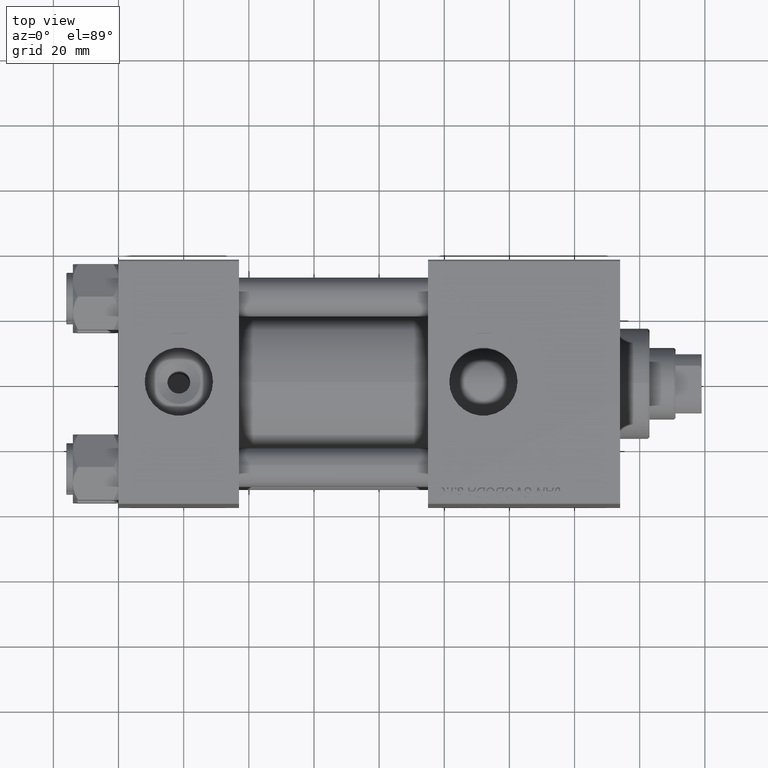
[diagram: clean part render]
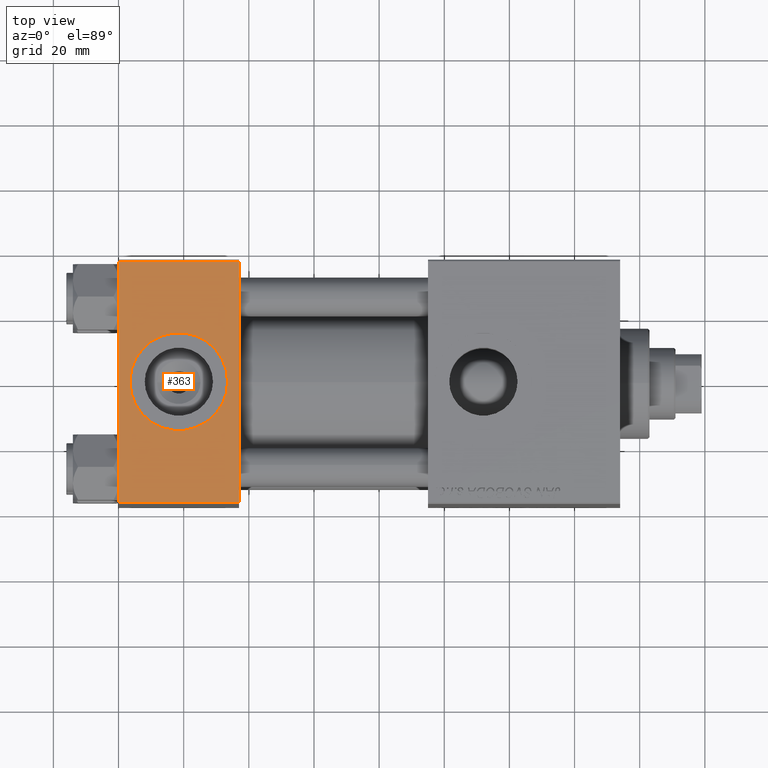
[diagram: same view with one face highlighted and labeled with its STEP entity id]
A machine part, top view. The second image highlights one B-rep face of the part: STEP entity #363.
In plain terms, the highlighted planar face has unit normal (0, 0, -1).
Its self-contained STEP definition (entity closure, byte-faithful):
#363 = ADVANCED_FACE ( 'NONE', ( #37028, #845 ), #12985, .F. ) ;
#503 = EDGE_CURVE ( 'NONE', #37017, #10672, #43558, .T. ) ;
#845 = FACE_OUTER_BOUND ( 'NONE', #10298, .T. ) ;
#4308 = EDGE_CURVE ( 'NONE', #36411, #8347, #10767, .T. ) ;
#4667 = EDGE_CURVE ( 'NONE', #44751, #10672, #4790, .T. ) ;
#4790 = LINE ( 'NONE', #37021, #15813 ) ;
#5420 = CARTESIAN_POINT ( 'NONE',  ( 33.50000000000000000, -5.204170427930421283E-15, 37.50000000000000000 ) ) ;
#6259 = AXIS2_PLACEMENT_3D ( 'NONE', #45705, #26150, #22434 ) ;
#7365 = CARTESIAN_POINT ( 'NONE',  ( 37.00000000000000000, 37.49999999999999289, 37.50000000000000000 ) ) ;
#8347 = VERTEX_POINT ( 'NONE', #15522 ) ;
#10298 = EDGE_LOOP ( 'NONE', ( #49027, #17716, #44086, #15025 ) ) ;
#10672 = VERTEX_POINT ( 'NONE', #12520 ) ;
#10767 = CIRCLE ( 'NONE', #38588, 15.00000000000000355 ) ;
#11332 = EDGE_CURVE ( 'NONE', #31963, #44751, #12386, .T. ) ;
#12191 = CARTESIAN_POINT ( 'NONE',  ( 0.000000000000000000, -37.00000000000000711, 37.49999999999999289 ) ) ;
#12386 = LINE ( 'NONE', #36157, #42944 ) ;
#12520 = CARTESIAN_POINT ( 'NONE',  ( 37.00000000000000000, -37.00000000000000711, 37.49999999999999289 ) ) ;
#12985 = PLANE ( 'NONE',  #36787 ) ;
#14219 = EDGE_CURVE ( 'NONE', #37017, #31963, #27004, .T. ) ;
#15025 = ORIENTED_EDGE ( 'NONE', *, *, #14219, .T. ) ;
#15522 = CARTESIAN_POINT ( 'NONE',  ( 3.499999999999997780, -3.367200229209391300E-15, 37.50000000000000000 ) ) ;
#15813 = VECTOR ( 'NONE', #24064, 1000.000000000000000 ) ;
#16960 = CARTESIAN_POINT ( 'NONE',  ( 37.00000000000000000, 37.49999999999999289, 37.50000000000000000 ) ) ;
#17716 = ORIENTED_EDGE ( 'NONE', *, *, #4667, .T. ) ;
#18548 = DIRECTION ( 'NONE',  ( 1.000000000000000000, 0.000000000000000000, 0.000000000000000000 ) ) ;
#18998 = EDGE_LOOP ( 'NONE', ( #51366, #28483 ) ) ;
#21570 = CARTESIAN_POINT ( 'NONE',  ( 0.000000000000000000, 36.99999999999999289, 37.50000000000000000 ) ) ;
#21749 = CARTESIAN_POINT ( 'NONE',  ( 18.50000000000000000, -5.204170427930421283E-15, 37.50000000000000000 ) ) ;
#22434 = DIRECTION ( 'NONE',  ( 1.000000000000000000, 0.000000000000000000, 0.000000000000000000 ) ) ;
#22961 = EDGE_CURVE ( 'NONE', #8347, #36411, #36651, .T. ) ;
#24064 = DIRECTION ( 'NONE',  ( 1.000000000000000000, 0.000000000000000000, 0.000000000000000000 ) ) ;
#26150 = DIRECTION ( 'NONE',  ( 0.000000000000000000, 0.000000000000000000, 1.000000000000000000 ) ) ;
#27004 = LINE ( 'NONE', #48118, #38861 ) ;
#28483 = ORIENTED_EDGE ( 'NONE', *, *, #22961, .F. ) ;
#31963 = VERTEX_POINT ( 'NONE', #21570 ) ;
#33055 = DIRECTION ( 'NONE',  ( 0.000000000000000000, 9.251858538542971581E-17, -1.000000000000000000 ) ) ;
#33574 = DIRECTION ( 'NONE',  ( 0.000000000000000000, 1.000000000000000000, 9.251858538542971581E-17 ) ) ;
#34264 = VECTOR ( 'NONE', #35884, 1000.000000000000000 ) ;
#35884 = DIRECTION ( 'NONE',  ( 0.000000000000000000, -1.000000000000000000, -9.251858538542971581E-17 ) ) ;
#36129 = CARTESIAN_POINT ( 'NONE',  ( 37.00000000000000000, 36.99999999999999289, 37.50000000000000000 ) ) ;
#36157 = CARTESIAN_POINT ( 'NONE',  ( 0.000000000000000000, 37.49999999999999289, 37.50000000000000000 ) ) ;
#36411 = VERTEX_POINT ( 'NONE', #5420 ) ;
#36651 = CIRCLE ( 'NONE', #6259, 15.00000000000000355 ) ;
#36787 = AXIS2_PLACEMENT_3D ( 'NONE', #16960, #33055, #33574 ) ;
#37017 = VERTEX_POINT ( 'NONE', #36129 ) ;
#37021 = CARTESIAN_POINT ( 'NONE',  ( 37.00000000000000000, -37.00000000000000711, 37.49999999999999289 ) ) ;
#37028 = FACE_BOUND ( 'NONE', #18998, .T. ) ;
#38588 = AXIS2_PLACEMENT_3D ( 'NONE', #21749, #46296, #18548 ) ;
#38861 = VECTOR ( 'NONE', #43114, 1000.000000000000000 ) ;
#40649 = DIRECTION ( 'NONE',  ( 0.000000000000000000, -1.000000000000000000, -9.251858538542971581E-17 ) ) ;
#42944 = VECTOR ( 'NONE', #40649, 1000.000000000000000 ) ;
#43114 = DIRECTION ( 'NONE',  ( -1.000000000000000000, 0.000000000000000000, 0.000000000000000000 ) ) ;
#43558 = LINE ( 'NONE', #7365, #34264 ) ;
#44086 = ORIENTED_EDGE ( 'NONE', *, *, #503, .F. ) ;
#44751 = VERTEX_POINT ( 'NONE', #12191 ) ;
#45705 = CARTESIAN_POINT ( 'NONE',  ( 18.50000000000000000, -5.204170427930421283E-15, 37.50000000000000000 ) ) ;
#46296 = DIRECTION ( 'NONE',  ( 0.000000000000000000, 0.000000000000000000, 1.000000000000000000 ) ) ;
#48118 = CARTESIAN_POINT ( 'NONE',  ( 0.000000000000000000, 36.99999999999999289, 37.50000000000000000 ) ) ;
#49027 = ORIENTED_EDGE ( 'NONE', *, *, #11332, .T. ) ;
#51366 = ORIENTED_EDGE ( 'NONE', *, *, #4308, .F. ) ;